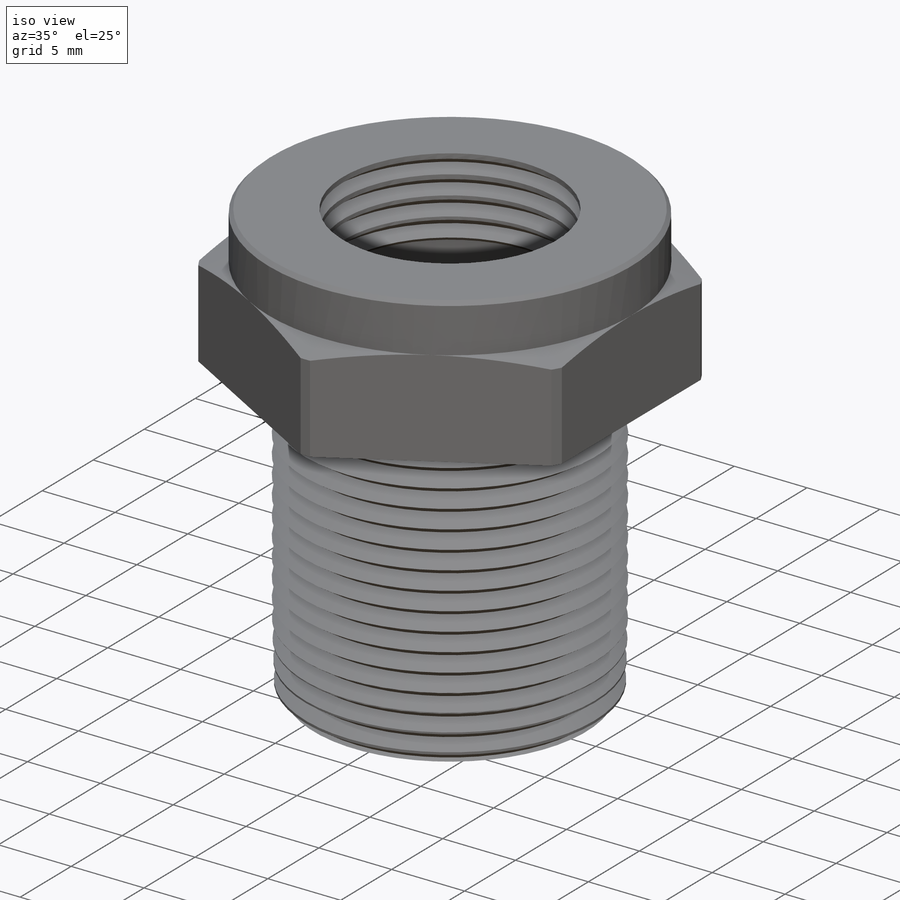
[diagram: iso view]
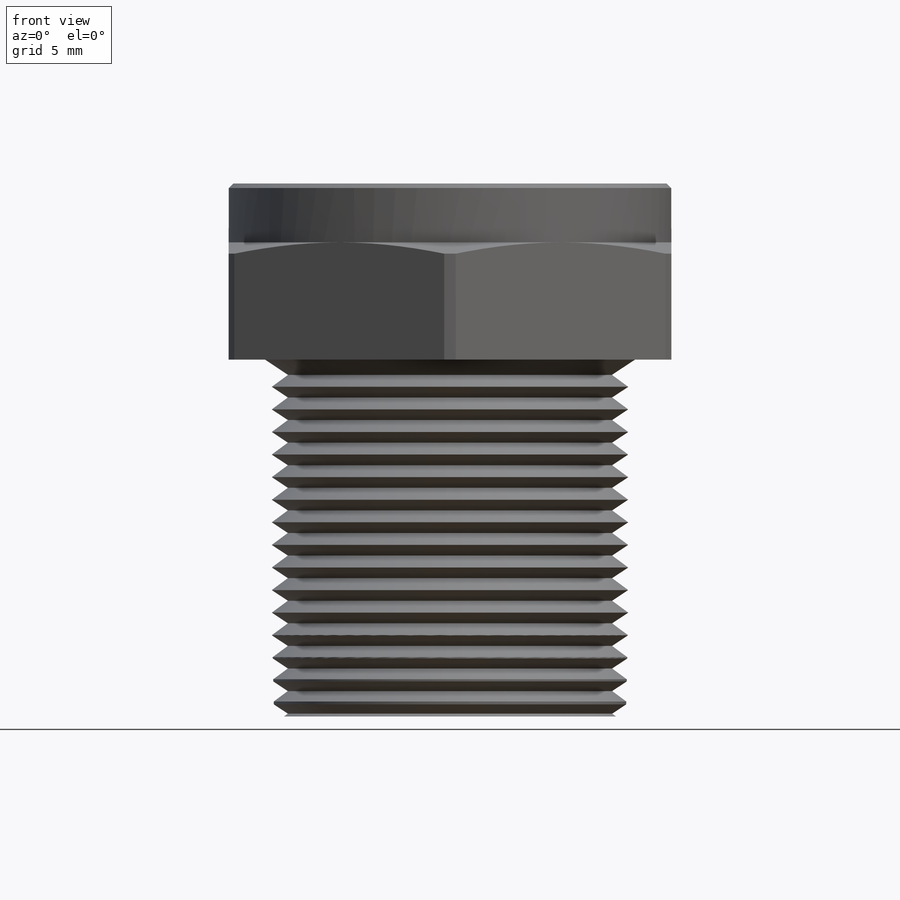
[diagram: front view]
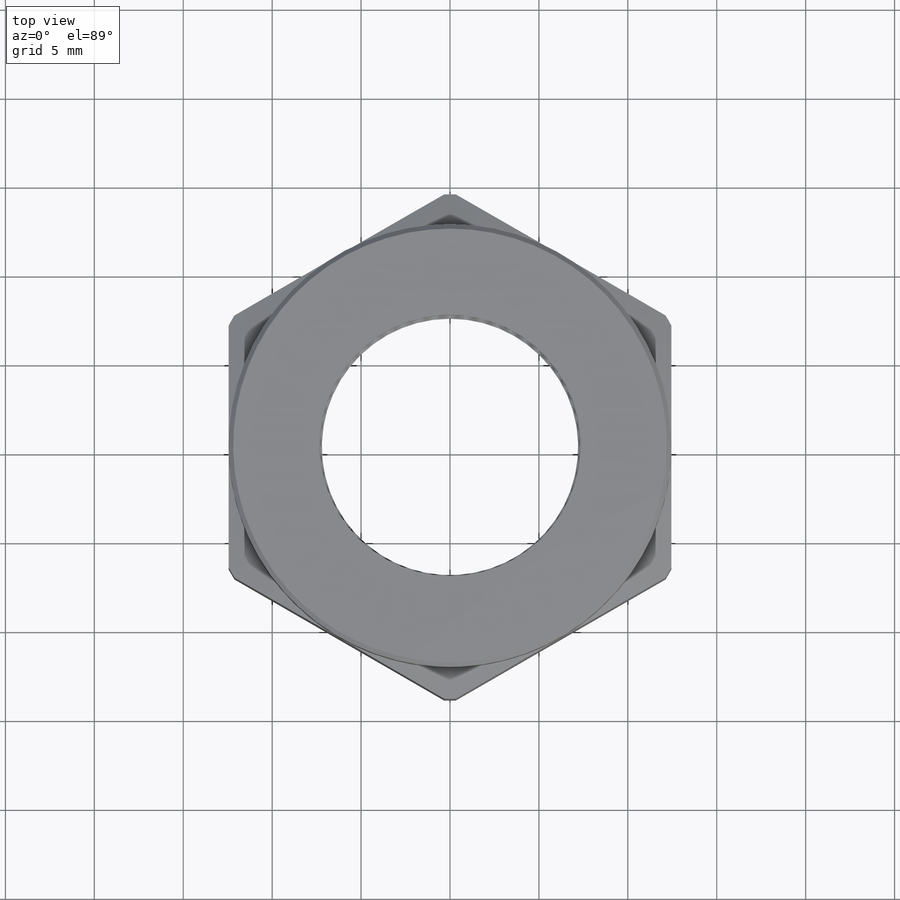
[diagram: top view]
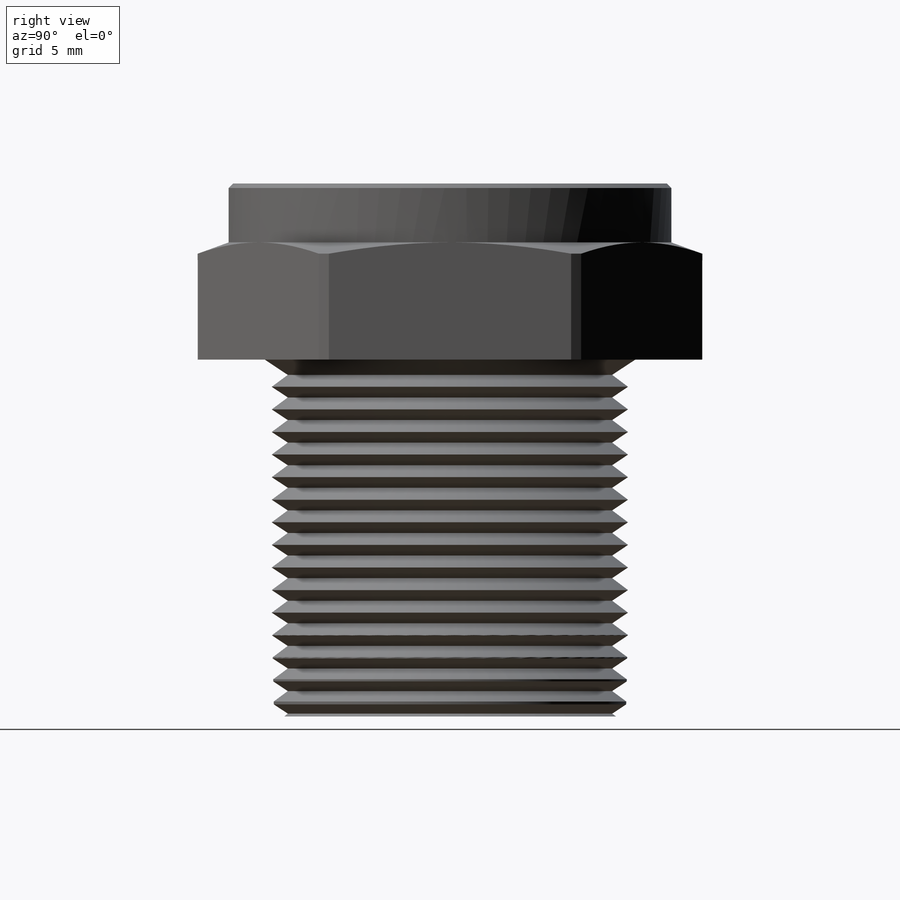
[diagram: right view]
SOLIDWORKS PART (.sldprt)
format: sldprt  version: not decoded by parser v0  size: 379,392 bytes
history: native  units: mm
features: sketch x5, cut_extrude x2, chamfer x2, cut_revolve x2, pattern_linear x2, material x1, revolve x1 (+12 scaffold rows collapsed)
feature tree (27):
  scaffold x12  (default folders/planes/origin — collapsed)
  material  "Material <not specified>"
  sketch  "Sketch1"  dims[c1.D1=~24.112543mm c2.D1=1.5deg c2.D2=~35.983333mm c3.D2=1.5deg c3.A=20.828mm c3.0.8A=16.6624mm c3.B=14.4018mm c3.T=20.066mm c3.H=29.972mm c3.0.22H=~6.59384mm c3.W1=~28.37688mm c3.1.1B=~16.56207mm c3.T+.05H=21.5646mm c3.W=24.892mm c3..1H=2.9972mm]
  revolve  "Revolve1"  Angle=360deg
  sketch  "Sketch2"  dims[Wr=24.892mm]
  cut_extrude  "Cut-Extrude1"  [1 undecoded]
  sketch  "Sketch4"
  cut_extrude  "Cut-Extrude3"  Depth=1.27mm
  chamfer  "Chamfer2"  Distance=0.254mm Angle=45deg
  sketch  "Sketch7"  dims[c1.D1=~1.690716mm c2.D1=55.0deg c2.D2=~1.616668mm c3.D2=55.0deg c3.D3=16.002mm c3.D4=~1.42322mm]
  cut_revolve  "Cut-Revolve1"  Angle=360deg
  pattern_linear  "LPattern1"  Count1=5 Count2=1 Spacing1=1.27mm Spacing2=50mm
  sketch  "Sketch8"  dims[c1.D1=~0.521032mm c2.D1=55.0deg c2.D2=~0.521032mm c3.D2=55.0deg c3.D3=1.27mm c3.D4=~12.654314mm c4.D3=1.27mm]
  cut_revolve  "Cut-Revolve2"  Angle=360deg
  pattern_linear  "LPattern2"  Count1=16 Count2=1 Spacing1=1.27mm Spacing2=50mm
  chamfer  "Chamfer3"  Distance=0.254mm Angle=45deg
decode coverage: 12 of 14 modeling features carry decoded parameters
note: ~ marks probable driven/reference dimensions
note: 1 parameter value undecoded
note: suppression state not decoded; provenance and decode notes live in map.json
